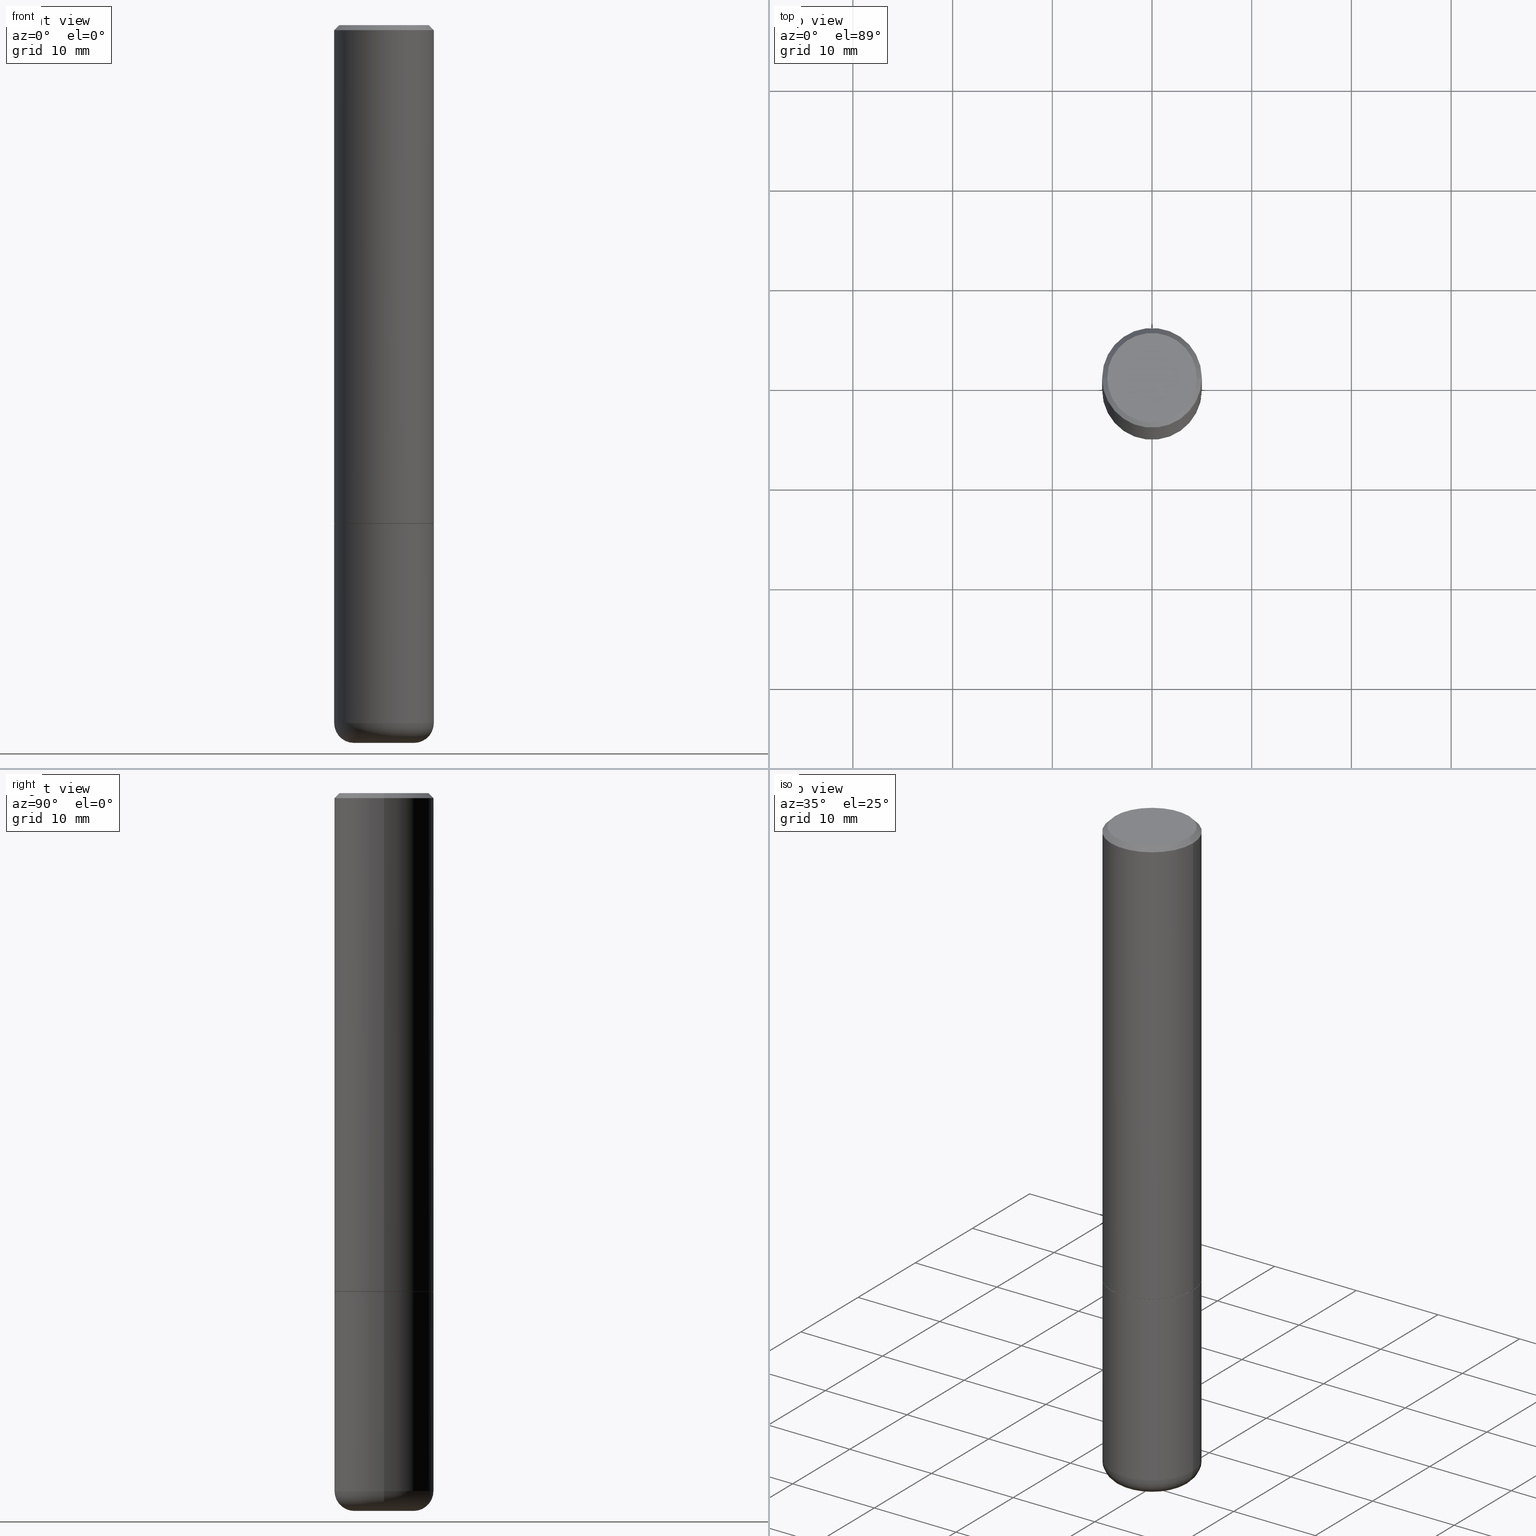
[diagram: canonical four-view strip — front | top / right | iso, engineering-drawing reading convention]
A machine part, canonical four-view strip (front | top / right | iso — engineering-drawing reading convention). The complete STEP part file that produces these views, byte-faithful:
ISO-10303-21;
HEADER;
FILE_DESCRIPTION (( 'STEP AP203' ),
    '1' );
FILE_NAME ('48009.STEP',
    '2024-03-06T19:44:53',
    ( '' ),
    ( '' ),
    'SwSTEP 2.0',
    'SolidWorks 2023',
    '' );
FILE_SCHEMA (( 'CONFIG_CONTROL_DESIGN' ));
ENDSEC;

DATA;
#1 = DIRECTION ( 'NONE',  ( 1.000000000000000000, -6.982962677686266711E-15, 4.876176775795935793E-29 ) ) ;
#2 = DIRECTION ( 'NONE',  ( -2.445468806185136597E-29, 3.491481338843145583E-15, 1.000000000000000000 ) ) ;
#3 = CONICAL_SURFACE ( 'NONE', #297, 0.1958499999999999963, 0.7853981633973801113 ) ;
#4 = VERTEX_POINT ( 'NONE', #31 ) ;
#5 = CARTESIAN_POINT ( 'NONE',  ( 0.1968500000000000250, -1.374596203102541608E-15, 9.598753983154300858E-30 ) ) ;
#6 = PLANE ( 'NONE',  #407 ) ;
#7 = CARTESIAN_POINT ( 'NONE',  ( -0.1958499999999999963, -5.481383067526576505E-15, -1.968500000000000361 ) ) ;
#8 = EDGE_CURVE ( 'NONE', #324, #47, #185, .T. ) ;
#9 = DESIGN_CONTEXT ( 'detailed design', #30, 'design' ) ;
#10 = DIRECTION ( 'NONE',  ( 1.000000000000000000, -6.982962677686265922E-15, 0.000000000000000000 ) ) ;
#11 = FACE_OUTER_BOUND ( 'NONE', #249, .T. ) ;
#12 = CC_DESIGN_DATE_AND_TIME_ASSIGNMENT ( #124, #318, ( #219 ) ) ;
#13 = AXIS2_PLACEMENT_3D ( 'NONE', #237, #111, #363 ) ;
#14 = EDGE_CURVE ( 'NONE', #59, #4, #288, .T. ) ;
#15 = DIRECTION ( 'NONE',  ( -2.445468806185136597E-29, 3.491481338843145583E-15, 1.000000000000000000 ) ) ;
#16 = ORGANIZATION ( 'UNSPECIFIED', 'UNSPECIFIED', '' ) ;
#17 = ORIENTED_EDGE ( 'NONE', *, *, #198, .T. ) ;
#18 =( NAMED_UNIT ( * ) SI_UNIT ( $, .STERADIAN. ) SOLID_ANGLE_UNIT ( ) );
#19 = ADVANCED_FACE ( 'NONE', ( #301 ), #258, .T. ) ;
#20 = MECHANICAL_CONTEXT ( 'NONE', #295, 'mechanical' ) ;
#21 = ORIENTED_EDGE ( 'NONE', *, *, #242, .T. ) ;
#22 = AXIS2_PLACEMENT_3D ( 'NONE', #196, #333, #385 ) ;
#23 = VERTEX_POINT ( 'NONE', #319 ) ;
#24 = APPLICATION_PROTOCOL_DEFINITION ( 'international standard', 'config_control_design', 1994, #30 ) ;
#25 = ORIENTED_EDGE ( 'NONE', *, *, #128, .T. ) ;
#26 = ADVANCED_FACE ( 'NONE', ( #221 ), #6, .T. ) ;
#27 = ORIENTED_EDGE ( 'NONE', *, *, #112, .F. ) ;
#28 = PERSON ( 'UNSPECIFIED', 'UNSPECIFIED', 'UNSPECIFIED', ('UNSPECIFIED'), ('UNSPECIFIED'), ('UNSPECIFIED') ) ;
#29 = AXIS2_PLACEMENT_3D ( 'NONE', #202, #334, #271 ) ;
#30 = APPLICATION_CONTEXT ( 'configuration controlled 3d designs of mechanical parts and assemblies' ) ;
#31 = CARTESIAN_POINT ( 'NONE',  ( 0.1968500000000000527, -1.420318657638189516E-15, -0.02000000000000004205 ) ) ;
#32 = CARTESIAN_POINT ( 'NONE',  ( -0.1968500000000001082, -8.223470046374067391E-15, -2.755900000000000016 ) ) ;
#33 = ORIENTED_EDGE ( 'NONE', *, *, #165, .T. ) ;
#34 = DIRECTION ( 'NONE',  ( -1.000000000000000000, 6.982962677686265922E-15, -4.876176775795935793E-29 ) ) ;
#35 = CARTESIAN_POINT ( 'NONE',  ( 4.813905344975442395E-29, -6.872981015512733285E-15, -1.968500000000000361 ) ) ;
#36 = APPROVAL_STATUS ( 'not_yet_approved' ) ;
#37 = DIRECTION ( 'NONE',  ( -2.445468806185136597E-29, 3.491481338843145583E-15, 1.000000000000000000 ) ) ;
#38 = CIRCLE ( 'NONE', #359, 0.07870000000000024198 ) ;
#39 = VECTOR ( 'NONE', #241, 39.37007874015748143 ) ;
#40 = DIRECTION ( 'NONE',  ( 2.445468806185136597E-29, -3.491481338843145583E-15, -1.000000000000000000 ) ) ;
#41 = FACE_OUTER_BOUND ( 'NONE', #341, .T. ) ;
#42 = ADVANCED_FACE ( 'NONE', ( #218 ), #63, .T. ) ;
#43 = CC_DESIGN_PERSON_AND_ORGANIZATION_ASSIGNMENT ( #403, #57, ( #219 ) ) ;
#44 = CARTESIAN_POINT ( 'NONE',  ( 6.739467482965618232E-29, -9.622173421717824390E-15, -2.755900000000000016 ) ) ;
#45 = AXIS2_PLACEMENT_3D ( 'NONE', #268, #234, #396 ) ;
#46 = FACE_OUTER_BOUND ( 'NONE', #172, .T. ) ;
#47 = VERTEX_POINT ( 'NONE', #416 ) ;
#48 = AXIS2_PLACEMENT_3D ( 'NONE', #304, #326, #328 ) ;
#49 = PERSON_AND_ORGANIZATION_ROLE ( 'design_supplier' ) ;
#50 = EDGE_CURVE ( 'NONE', #118, #177, #38, .T. ) ;
#51 = ORIENTED_EDGE ( 'NONE', *, *, #14, .T. ) ;
#52 = APPLICATION_PROTOCOL_DEFINITION ( 'international standard', 'config_control_design', 1994, #295 ) ;
#53 = ORIENTED_EDGE ( 'NONE', *, *, #14, .F. ) ;
#54 = PERSON_AND_ORGANIZATION_ROLE ( 'design_owner' ) ;
#55 = ORIENTED_EDGE ( 'NONE', *, *, #231, .T. ) ;
#56 = CIRCLE ( 'NONE', #109, 0.1958499999999999963 ) ;
#57 = PERSON_AND_ORGANIZATION_ROLE ( 'creator' ) ;
#58 = AXIS2_PLACEMENT_3D ( 'NONE', #332, #195, #262 ) ;
#59 = VERTEX_POINT ( 'NONE', #353 ) ;
#60 = APPROVAL ( #36, 'UNSPECIFIED' ) ;
#61 = DATE_AND_TIME ( #375, #153 ) ;
#62 = ORIENTED_EDGE ( 'NONE', *, *, #136, .F. ) ;
#63 = CYLINDRICAL_SURFACE ( 'NONE', #397, 0.1968500000000000250 ) ;
#64 = DIRECTION ( 'NONE',  ( 2.438088387897960049E-29, -3.491481338843145188E-15, -1.000000000000000000 ) ) ;
#65 = CC_DESIGN_APPROVAL ( #355, ( #171 ) ) ;
#66 = CARTESIAN_POINT ( 'NONE',  ( 0.000000000000000000, 0.000000000000000000, 0.000000000000000000 ) ) ;
#67 = DIRECTION ( 'NONE',  ( 1.000000000000000000, -6.982962677686265922E-15, 4.876176775795935793E-29 ) ) ;
#68 = FACE_OUTER_BOUND ( 'NONE', #345, .T. ) ;
#69 = FACE_OUTER_BOUND ( 'NONE', #97, .T. ) ;
#70 = CARTESIAN_POINT ( 'NONE',  ( -0.1181500000000000189, -8.640458403579145034E-15, -2.834600000000000453 ) ) ;
#71 = ADVANCED_FACE ( 'NONE', ( #68 ), #117, .T. ) ;
#72 = CARTESIAN_POINT ( 'NONE',  ( 4.811459876169256232E-29, -6.869489534173888700E-15, -1.967500000000000027 ) ) ;
#73 = AXIS2_PLACEMENT_3D ( 'NONE', #72, #37, #10 ) ;
#74 = DIRECTION ( 'NONE',  ( 1.000000000000000000, -6.982962677686265922E-15, 0.000000000000000000 ) ) ;
#75 = DIRECTION ( 'NONE',  ( -0.7071067811864992780, 7.493145998870180611E-15, 0.7071067811865957564 ) ) ;
#76 = CARTESIAN_POINT ( 'NONE',  ( 6.739467482965618232E-29, -9.622173421717824390E-15, -2.755900000000000016 ) ) ;
#77 = AXIS2_PLACEMENT_3D ( 'NONE', #299, #222, #418 ) ;
#78 = EDGE_LOOP ( 'NONE', ( #317, #55, #330, #212 ) ) ;
#79 = MANIFOLD_SOLID_BREP ( 'Body-Move/Copy2[2]', #200 ) ;
#80 = COORDINATED_UNIVERSAL_TIME_OFFSET ( 5, 0, .BEHIND. ) ;
#81 = ADVANCED_FACE ( 'NONE', ( #160 ), #279, .T. ) ;
#82 = ADVANCED_FACE ( 'NONE', ( #137 ), #3, .T. ) ;
#83 = VERTEX_POINT ( 'NONE', #70 ) ;
#84 = TOROIDAL_SURFACE ( 'NONE', #408, 0.1181500000000000050, 0.07870000000000022811 ) ;
#85 =( LENGTH_UNIT ( ) NAMED_UNIT ( * ) SI_UNIT ( $, .METRE. ) );
#86 = ORIENTED_EDGE ( 'NONE', *, *, #128, .F. ) ;
#87 = CARTESIAN_POINT ( 'NONE',  ( 0.1968500000000000527, -1.420318657638189516E-15, -0.02000000000000004205 ) ) ;
#88 = ORIENTED_EDGE ( 'NONE', *, *, #412, .T. ) ;
#89 = DATE_AND_TIME ( #377, #413 ) ;
#90 = AXIS2_PLACEMENT_3D ( 'NONE', #226, #127, #193 ) ;
#91 = COORDINATED_UNIVERSAL_TIME_OFFSET ( 5, 0, .BEHIND. ) ;
#92 = VECTOR ( 'NONE', #132, 39.37007874015748143 ) ;
#93 = DIRECTION ( 'NONE',  ( 1.000000000000000000, -6.982962677686268288E-15, 0.000000000000000000 ) ) ;
#94 = DIRECTION ( 'NONE',  ( -2.445468806185136877E-29, 3.491481338843145188E-15, 1.000000000000000000 ) ) ;
#95 = DIRECTION ( 'NONE',  ( 1.000000000000000000, -6.982962677686269077E-15, 4.883557194083114022E-29 ) ) ;
#96 = EDGE_CURVE ( 'NONE', #247, #414, #56, .T. ) ;
#97 = EDGE_LOOP ( 'NONE', ( #283, #406 ) ) ;
#98 = DIRECTION ( 'NONE',  ( -2.445468806185136877E-29, 3.491481338843145188E-15, 1.000000000000000000 ) ) ;
#99 = CARTESIAN_POINT ( 'NONE',  ( 0.1181500000000000050, -1.044721046208645774E-14, -2.755900000000000016 ) ) ;
#100 = APPROVAL_ROLE ( '' ) ;
#101 = CARTESIAN_POINT ( 'NONE',  ( 0.1968500000000001082, -1.099676962482036600E-14, -2.755900000000000016 ) ) ;
#102 = ORIENTED_EDGE ( 'NONE', *, *, #275, .F. ) ;
#103 = FACE_OUTER_BOUND ( 'NONE', #240, .T. ) ;
#104 = EDGE_CURVE ( 'NONE', #281, #337, #167, .T. ) ;
#105 = CARTESIAN_POINT ( 'NONE',  ( 4.811459876169256232E-29, -6.869489534173888700E-15, -1.967500000000000027 ) ) ;
#106 = FACE_OUTER_BOUND ( 'NONE', #384, .T. ) ;
#107 = CARTESIAN_POINT ( 'NONE',  ( 6.739467482965618232E-29, -9.622173421717824390E-15, -2.755900000000000016 ) ) ;
#108 = CONICAL_SURFACE ( 'NONE', #29, 0.1968500000000000527, 0.7853981633974469467 ) ;
#109 = AXIS2_PLACEMENT_3D ( 'NONE', #163, #381, #93 ) ;
#110 = AXIS2_PLACEMENT_3D ( 'NONE', #76, #170, #169 ) ;
#111 = DIRECTION ( 'NONE',  ( -2.438088387897960049E-29, 3.491481338843145188E-15, 1.000000000000000000 ) ) ;
#112 = EDGE_CURVE ( 'NONE', #23, #59, #201, .T. ) ;
#113 = LINE ( 'NONE', #87, #39 ) ;
#114 = CC_DESIGN_PERSON_AND_ORGANIZATION_ASSIGNMENT ( #213, #307, ( #171 ) ) ;
#115 = ORIENTED_EDGE ( 'NONE', *, *, #312, .T. ) ;
#116 = DIRECTION ( 'NONE',  ( 1.000000000000000000, 0.000000000000000000, 0.000000000000000000 ) ) ;
#117 = CONICAL_SURFACE ( 'NONE', #214, 0.1958499999999999963, 0.7853981633973801113 ) ;
#118 = VERTEX_POINT ( 'NONE', #189 ) ;
#119 = AXIS2_PLACEMENT_3D ( 'NONE', #265, #394, #230 ) ;
#120 = ORIENTED_EDGE ( 'NONE', *, *, #104, .F. ) ;
#121 = APPROVAL_STATUS ( 'not_yet_approved' ) ;
#122 = DIRECTION ( 'NONE',  ( 0.7071067811864992780, -2.468850131081751401E-15, 0.7071067811865957564 ) ) ;
#123 = VERTEX_POINT ( 'NONE', #32 ) ;
#124 = DATE_AND_TIME ( #179, #126 ) ;
#125 = ORIENTED_EDGE ( 'NONE', *, *, #336, .F. ) ;
#126 = LOCAL_TIME ( 14, 44, 53.00000000000000000, #80 ) ;
#127 = DIRECTION ( 'NONE',  ( -2.445468806185136597E-29, 3.491481338843145583E-15, 1.000000000000000000 ) ) ;
#128 = EDGE_CURVE ( 'NONE', #47, #324, #380, .T. ) ;
#129 = DIRECTION ( 'NONE',  ( -6.982962677686266711E-15, -1.000000000000000000, 3.491481338843145583E-15 ) ) ;
#130 = CARTESIAN_POINT ( 'NONE',  ( -0.1968500000000000527, 1.304766576325678902E-15, -0.02000000000000004205 ) ) ;
#131 = ORIENTED_EDGE ( 'NONE', *, *, #235, .F. ) ;
#132 = DIRECTION ( 'NONE',  ( -2.445468806185136877E-29, 3.491481338843145188E-15, 1.000000000000000000 ) ) ;
#133 = AXIS2_PLACEMENT_3D ( 'NONE', #362, #2, #67 ) ;
#134 = CARTESIAN_POINT ( 'NONE',  ( 4.890937612370283668E-31, -6.982962677686305168E-17, -0.02000000000000004205 ) ) ;
#135 = LINE ( 'NONE', #5, #92 ) ;
#136 = EDGE_CURVE ( 'NONE', #177, #324, #135, .T. ) ;
#137 = FACE_OUTER_BOUND ( 'NONE', #78, .T. ) ;
#138 = CARTESIAN_POINT ( 'NONE',  ( 4.890937612370283668E-31, -6.982962677686305168E-17, -0.02000000000000004205 ) ) ;
#139 = CARTESIAN_POINT ( 'NONE',  ( 6.931925878012389760E-29, -9.896953003084782463E-15, -2.834600000000000453 ) ) ;
#140 = TOROIDAL_SURFACE ( 'NONE', #162, 0.1181500000000000050, 0.07870000000000022811 ) ;
#141 = DIRECTION ( 'NONE',  ( 1.000000000000000000, -6.982962677686269077E-15, 4.883557194083114022E-29 ) ) ;
#142 = AXIS2_PLACEMENT_3D ( 'NONE', #134, #40, #263 ) ;
#143 = ADVANCED_FACE ( 'NONE', ( #323 ), #156, .T. ) ;
#144 = CIRCLE ( 'NONE', #280, 0.1958499999999999963 ) ;
#145 = APPROVAL_STATUS ( 'not_yet_approved' ) ;
#146 = CC_DESIGN_PERSON_AND_ORGANIZATION_ASSIGNMENT ( #339, #49, ( #171 ) ) ;
#147 = ORIENTED_EDGE ( 'NONE', *, *, #165, .F. ) ;
#148 = ORIENTED_EDGE ( 'NONE', *, *, #312, .F. ) ;
#149 = PERSON_AND_ORGANIZATION ( #28, #16 ) ;
#150 = ORIENTED_EDGE ( 'NONE', *, *, #399, .T. ) ;
#151 = ADVANCED_FACE ( 'NONE', ( #69 ), #192, .F. ) ;
#152 = ORIENTED_EDGE ( 'NONE', *, *, #382, .F. ) ;
#153 = LOCAL_TIME ( 14, 44, 53.00000000000000000, #369 ) ;
#154 = APPROVAL ( #145, 'UNSPECIFIED' ) ;
#155 = ORIENTED_EDGE ( 'NONE', *, *, #50, .T. ) ;
#156 = CYLINDRICAL_SURFACE ( 'NONE', #224, 0.1968500000000001082 ) ;
#157 = ADVANCED_BREP_SHAPE_REPRESENTATION ( '48009', ( #217, #79, #269 ), #272 ) ;
#158 = DIRECTION ( 'NONE',  ( 1.000000000000000000, -6.982962677686268288E-15, 0.000000000000000000 ) ) ;
#159 = CARTESIAN_POINT ( 'NONE',  ( 0.1958499999999999963, -8.240594255937588879E-15, -1.968500000000000361 ) ) ;
#160 = FACE_OUTER_BOUND ( 'NONE', #182, .T. ) ;
#161 = LINE ( 'NONE', #7, #366 ) ;
#162 = AXIS2_PLACEMENT_3D ( 'NONE', #107, #15, #141 ) ;
#163 = CARTESIAN_POINT ( 'NONE',  ( 4.813905344975442395E-29, -6.872981015512733285E-15, -1.968500000000000361 ) ) ;
#164 = DIRECTION ( 'NONE',  ( 1.000000000000000000, -6.982962677686267499E-15, 4.875932113059876327E-29 ) ) ;
#165 = EDGE_CURVE ( 'NONE', #123, #47, #187, .T. ) ;
#166 = AXIS2_PLACEMENT_3D ( 'NONE', #66, #290, #1 ) ;
#167 = CIRCLE ( 'NONE', #119, 0.1768500000000000627 ) ;
#168 = LOCAL_TIME ( 14, 44, 53.00000000000000000, #254 ) ;
#169 = DIRECTION ( 'NONE',  ( 1.000000000000000000, -6.982962677686267499E-15, 0.000000000000000000 ) ) ;
#170 = DIRECTION ( 'NONE',  ( -2.445468806185136597E-29, 3.491481338843145583E-15, 1.000000000000000000 ) ) ;
#171 = PRODUCT_DEFINITION_FORMATION_WITH_SPECIFIED_SOURCE ( 'ANY', '', #417, .NOT_KNOWN. ) ;
#172 = EDGE_LOOP ( 'NONE', ( #313, #152 ) ) ;
#173 = SECURITY_CLASSIFICATION_LEVEL ( 'unclassified' ) ;
#174 = ORIENTED_EDGE ( 'NONE', *, *, #203, .T. ) ;
#175 = CARTESIAN_POINT ( 'NONE',  ( -0.1958499999999999963, -5.476084613178352526E-15, -1.968500000000000361 ) ) ;
#176 = ORIENTED_EDGE ( 'NONE', *, *, #300, .F. ) ;
#177 = VERTEX_POINT ( 'NONE', #101 ) ;
#178 = VECTOR ( 'NONE', #122, 39.37007874015748143 ) ;
#179 = CALENDAR_DATE ( 2024, 6, 3 ) ;
#180 = EDGE_LOOP ( 'NONE', ( #277, #33, #245, #62 ) ) ;
#181 = EDGE_CURVE ( 'NONE', #337, #281, #331, .T. ) ;
#182 = EDGE_LOOP ( 'NONE', ( #120, #88, #411, #386 ) ) ;
#183 = CC_DESIGN_PERSON_AND_ORGANIZATION_ASSIGNMENT ( #278, #54, ( #417 ) ) ;
#184 = CARTESIAN_POINT ( 'NONE',  ( 0.000000000000000000, 0.000000000000000000, 0.000000000000000000 ) ) ;
#185 = CIRCLE ( 'NONE', #90, 0.1968500000000000250 ) ;
#186 = APPROVAL_PERSON_ORGANIZATION ( #379, #355, #248 ) ;
#187 = LINE ( 'NONE', #302, #298 ) ;
#188 = DIRECTION ( 'NONE',  ( 1.000000000000000000, -6.982962677686273810E-15, 0.000000000000000000 ) ) ;
#189 = CARTESIAN_POINT ( 'NONE',  ( 0.1181500000000000189, -1.072199004345341424E-14, -2.834600000000000453 ) ) ;
#190 = DIRECTION ( 'NONE',  ( 2.438088387897960049E-29, -3.491481338843145188E-15, -1.000000000000000000 ) ) ;
#191 = PERSON_AND_ORGANIZATION_ROLE ( 'classification_officer' ) ;
#192 = PLANE ( 'NONE',  #398 ) ;
#193 = DIRECTION ( 'NONE',  ( 1.000000000000000000, -6.982962677686267499E-15, 0.000000000000000000 ) ) ;
#194 = CIRCLE ( 'NONE', #22, 0.07870000000000024198 ) ;
#195 = DIRECTION ( 'NONE',  ( -2.445468806185136597E-29, 3.491481338843145583E-15, 1.000000000000000000 ) ) ;
#196 = CARTESIAN_POINT ( 'NONE',  ( -0.1181500000000000050, -8.782667179417266182E-15, -2.755900000000000016 ) ) ;
#197 = FACE_OUTER_BOUND ( 'NONE', #251, .T. ) ;
#198 = EDGE_CURVE ( 'NONE', #208, #4, #389, .T. ) ;
#199 = CARTESIAN_POINT ( 'NONE',  ( 0.1968500000000000250, -8.247577218615273316E-15, -1.968500000000000139 ) ) ;
#200 = CLOSED_SHELL ( 'NONE', ( #82, #143, #81, #364, #19, #71, #320, #151 ) ) ;
#201 = CIRCLE ( 'NONE', #238, 0.1968500000000002192 ) ;
#202 = CARTESIAN_POINT ( 'NONE',  ( 4.890937612370283668E-31, -6.982962677686305168E-17, -0.02000000000000004205 ) ) ;
#203 = EDGE_CURVE ( 'NONE', #59, #23, #350, .T. ) ;
#204 = ORIENTED_EDGE ( 'NONE', *, *, #383, .T. ) ;
#205 = LINE ( 'NONE', #276, #215 ) ;
#206 = CIRCLE ( 'NONE', #110, 0.1968500000000000250 ) ;
#207 = APPROVAL_PERSON_ORGANIZATION ( #220, #60, #100 ) ;
#208 = VERTEX_POINT ( 'NONE', #130 ) ;
#209 = LENGTH_MEASURE_WITH_UNIT ( LENGTH_MEASURE( 0.02539999999999999897 ), #85 );
#210 = ORIENTED_EDGE ( 'NONE', *, *, #242, .F. ) ;
#211 = DIRECTION ( 'NONE',  ( -0.7071067811865465735, 2.468850131082246805E-15, -0.7071067811865484609 ) ) ;
#212 = ORIENTED_EDGE ( 'NONE', *, *, #309, .F. ) ;
#213 = PERSON_AND_ORGANIZATION ( #28, #16 ) ;
#214 = AXIS2_PLACEMENT_3D ( 'NONE', #35, #293, #158 ) ;
#215 = VECTOR ( 'NONE', #211, 39.37007874015748143 ) ;
#216 = ADVANCED_FACE ( 'NONE', ( #103 ), #229, .F. ) ;
#217 = MANIFOLD_SOLID_BREP ( 'Body-Move/Copy2[1]', #365 ) ;
#218 = FACE_OUTER_BOUND ( 'NONE', #180, .T. ) ;
#219 = PRODUCT_DEFINITION ( 'UNKNOWN', '', #171, #9 ) ;
#220 = PERSON_AND_ORGANIZATION ( #28, #16 ) ;
#221 = FACE_OUTER_BOUND ( 'NONE', #344, .T. ) ;
#222 = DIRECTION ( 'NONE',  ( -2.445468806185136597E-29, 3.491481338843145583E-15, 1.000000000000000000 ) ) ;
#223 = CARTESIAN_POINT ( 'NONE',  ( 0.1968500000000001082, -1.374596203102542397E-15, 9.598753983154305062E-30 ) ) ;
#224 = AXIS2_PLACEMENT_3D ( 'NONE', #354, #292, #395 ) ;
#225 = DIRECTION ( 'NONE',  ( -2.445468806185136597E-29, 3.491481338843145583E-15, 1.000000000000000000 ) ) ;
#226 = CARTESIAN_POINT ( 'NONE',  ( 4.813905344975441835E-29, -6.872981015512731707E-15, -1.968500000000000139 ) ) ;
#227 = DIRECTION ( 'NONE',  ( -2.445468806185136877E-29, 3.491481338843145188E-15, 1.000000000000000000 ) ) ;
#228 = DIRECTION ( 'NONE',  ( -2.445468806185136597E-29, 3.491481338843145583E-15, 1.000000000000000000 ) ) ;
#229 = PLANE ( 'NONE',  #232 ) ;
#230 = DIRECTION ( 'NONE',  ( 1.000000000000000000, -6.982962677686267499E-15, 4.875932113059876327E-29 ) ) ;
#231 = EDGE_CURVE ( 'NONE', #414, #23, #161, .T. ) ;
#232 = AXIS2_PLACEMENT_3D ( 'NONE', #257, #255, #34 ) ;
#233 = CYLINDRICAL_SURFACE ( 'NONE', #133, 0.1968500000000000250 ) ;
#234 = DIRECTION ( 'NONE',  ( -2.445468806185136597E-29, 3.491481338843145583E-15, 1.000000000000000000 ) ) ;
#235 = EDGE_CURVE ( 'NONE', #177, #123, #287, .T. ) ;
#236 = DIRECTION ( 'NONE',  ( -2.445468806185136597E-29, 3.491481338843145583E-15, 1.000000000000000000 ) ) ;
#237 = CARTESIAN_POINT ( 'NONE',  ( 4.813905344975441835E-29, -6.872981015512731707E-15, -1.968500000000000139 ) ) ;
#238 = AXIS2_PLACEMENT_3D ( 'NONE', #105, #360, #74 ) ;
#239 = DIRECTION ( 'NONE',  ( 1.000000000000000000, -6.982962677686268288E-15, 0.000000000000000000 ) ) ;
#240 = EDGE_LOOP ( 'NONE', ( #296, #25 ) ) ;
#241 = DIRECTION ( 'NONE',  ( 0.7071067811865465735, -7.319954787623252890E-15, -0.7071067811865484609 ) ) ;
#242 = EDGE_CURVE ( 'NONE', #23, #208, #388, .T. ) ;
#243 = VECTOR ( 'NONE', #98, 39.37007874015748143 ) ;
#244 = CC_DESIGN_SECURITY_CLASSIFICATION ( #306, ( #171 ) ) ;
#245 = ORIENTED_EDGE ( 'NONE', *, *, #8, .F. ) ;
#246 = APPROVAL_ROLE ( '' ) ;
#247 = VERTEX_POINT ( 'NONE', #159 ) ;
#248 = APPROVAL_ROLE ( '' ) ;
#249 = EDGE_LOOP ( 'NONE', ( #176, #115, #155, #125 ) ) ;
#250 = DIRECTION ( 'NONE',  ( 0.000000000000000000, 0.000000000000000000, 1.000000000000000000 ) ) ;
#251 = EDGE_LOOP ( 'NONE', ( #315, #376, #150, #17 ) ) ;
#252 = UNCERTAINTY_MEASURE_WITH_UNIT (LENGTH_MEASURE( 1.000000000000000082E-05 ), #342, 'distance_accuracy_value', 'NONE');
#253 = EDGE_LOOP ( 'NONE', ( #174, #21, #102, #53 ) ) ;
#254 = COORDINATED_UNIVERSAL_TIME_OFFSET ( 5, 0, .BEHIND. ) ;
#255 = DIRECTION ( 'NONE',  ( 2.438088387897960049E-29, -3.491481338843145188E-15, -1.000000000000000000 ) ) ;
#256 = ORIENTED_EDGE ( 'NONE', *, *, #383, .F. ) ;
#257 = CARTESIAN_POINT ( 'NONE',  ( 4.813905344975441835E-29, -6.872981015512731707E-15, -1.968500000000000139 ) ) ;
#258 = CYLINDRICAL_SURFACE ( 'NONE', #166, 0.1968500000000001082 ) ;
#259 = AXIS2_PLACEMENT_3D ( 'NONE', #138, #352, #294 ) ;
#260 = CALENDAR_DATE ( 2024, 6, 3 ) ;
#261 = DIMENSIONAL_EXPONENTS ( 1.000000000000000000, 0.000000000000000000, 0.000000000000000000, 0.000000000000000000, 0.000000000000000000, 0.000000000000000000, 0.000000000000000000 ) ;
#262 = DIRECTION ( 'NONE',  ( 1.000000000000000000, -6.982962677686267499E-15, 0.000000000000000000 ) ) ;
#263 = DIRECTION ( 'NONE',  ( -1.000000000000000000, 6.982962677686266711E-15, 0.000000000000000000 ) ) ;
#264 = DIRECTION ( 'NONE',  ( -1.000000000000000000, 6.982962677686265922E-15, -4.876176775795935793E-29 ) ) ;
#265 = CARTESIAN_POINT ( 'NONE',  ( -1.043851414335219820E-46, 1.490343170380447200E-32, 4.268512490100411279E-18 ) ) ;
#266 = ADVANCED_FACE ( 'NONE', ( #41 ), #84, .T. ) ;
#267 = CARTESIAN_POINT ( 'NONE',  ( 0.1768500000000000627, -1.316798864272042535E-15, 4.268512490109333727E-18 ) ) ;
#268 = CARTESIAN_POINT ( 'NONE',  ( 6.931925878012389760E-29, -9.896953003084782463E-15, -2.834600000000000453 ) ) ;
#269 = AXIS2_PLACEMENT_3D ( 'NONE', #405, #250, #116 ) ;
#270 = PLANE ( 'NONE',  #13 ) ;
#271 = DIRECTION ( 'NONE',  ( -1.000000000000000000, 6.982962677686266711E-15, 0.000000000000000000 ) ) ;
#272 =( GEOMETRIC_REPRESENTATION_CONTEXT ( 3 ) GLOBAL_UNCERTAINTY_ASSIGNED_CONTEXT ( ( #252 ) ) GLOBAL_UNIT_ASSIGNED_CONTEXT ( ( #342, #314, #18 ) ) REPRESENTATION_CONTEXT ( 'NONE', 'WORKASPACE' ) );
#273 = APPROVAL_DATE_TIME ( #89, #355 ) ;
#274 = ORIENTED_EDGE ( 'NONE', *, *, #336, .T. ) ;
#275 = EDGE_CURVE ( 'NONE', #4, #208, #335, .T. ) ;
#276 = CARTESIAN_POINT ( 'NONE',  ( -0.1968500000000000527, 1.304766576325678902E-15, -0.02000000000000004205 ) ) ;
#277 = ORIENTED_EDGE ( 'NONE', *, *, #235, .T. ) ;
#278 = PERSON_AND_ORGANIZATION ( #28, #16 ) ;
#279 = CONICAL_SURFACE ( 'NONE', #142, 0.1968500000000000527, 0.7853981633974469467 ) ;
#280 = AXIS2_PLACEMENT_3D ( 'NONE', #401, #305, #239 ) ;
#281 = VERTEX_POINT ( 'NONE', #267 ) ;
#282 = APPROVAL_DATE_TIME ( #61, #154 ) ;
#283 = ORIENTED_EDGE ( 'NONE', *, *, #181, .T. ) ;
#284 = ADVANCED_FACE ( 'NONE', ( #106 ), #233, .T. ) ;
#285 = ORIENTED_EDGE ( 'NONE', *, *, #112, .T. ) ;
#286 = DATE_TIME_ROLE ( 'classification_date' ) ;
#287 = CIRCLE ( 'NONE', #58, 0.1968500000000000250 ) ;
#288 = LINE ( 'NONE', #223, #329 ) ;
#289 = DATE_AND_TIME ( #260, #168 ) ;
#290 = DIRECTION ( 'NONE',  ( -2.445468806185136597E-29, 3.491481338843145583E-15, 1.000000000000000000 ) ) ;
#291 = PRODUCT_DEFINITION_SHAPE ( 'NONE', 'NONE',  #219 ) ;
#292 = DIRECTION ( 'NONE',  ( -2.445468806185136597E-29, 3.491481338843145583E-15, 1.000000000000000000 ) ) ;
#293 = DIRECTION ( 'NONE',  ( -2.445468806185136597E-29, 3.491481338843145583E-15, 1.000000000000000000 ) ) ;
#294 = DIRECTION ( 'NONE',  ( 1.000000000000000000, -6.982962677686266711E-15, 0.000000000000000000 ) ) ;
#295 = APPLICATION_CONTEXT ( 'configuration controlled 3d designs of mechanical parts and assemblies' ) ;
#296 = ORIENTED_EDGE ( 'NONE', *, *, #8, .T. ) ;
#297 = AXIS2_PLACEMENT_3D ( 'NONE', #392, #228, #356 ) ;
#298 = VECTOR ( 'NONE', #227, 39.37007874015748143 ) ;
#299 = CARTESIAN_POINT ( 'NONE',  ( 4.813905344975441835E-29, -6.872981015512731707E-15, -1.968500000000000139 ) ) ;
#300 = EDGE_CURVE ( 'NONE', #83, #123, #194, .T. ) ;
#301 = FACE_OUTER_BOUND ( 'NONE', #370, .T. ) ;
#302 = CARTESIAN_POINT ( 'NONE',  ( -0.1968500000000000250, 1.398703375343757393E-15, -9.682923725166783677E-30 ) ) ;
#303 = CC_DESIGN_DATE_AND_TIME_ASSIGNMENT ( #348, #286, ( #306 ) ) ;
#304 = CARTESIAN_POINT ( 'NONE',  ( 4.890937612370283668E-31, -6.982962677686305168E-17, -0.02000000000000004205 ) ) ;
#305 = DIRECTION ( 'NONE',  ( -2.445468806185136597E-29, 3.491481338843145583E-15, 1.000000000000000000 ) ) ;
#306 = SECURITY_CLASSIFICATION ( '', '', #173 ) ;
#307 = PERSON_AND_ORGANIZATION_ROLE ( 'creator' ) ;
#308 = CC_DESIGN_APPROVAL ( #154, ( #219 ) ) ;
#309 = EDGE_CURVE ( 'NONE', #247, #59, #338, .T. ) ;
#310 = ORIENTED_EDGE ( 'NONE', *, *, #300, .T. ) ;
#311 = PERSON_AND_ORGANIZATION ( #28, #16 ) ;
#312 = EDGE_CURVE ( 'NONE', #83, #118, #321, .T. ) ;
#313 = ORIENTED_EDGE ( 'NONE', *, *, #96, .F. ) ;
#314 =( NAMED_UNIT ( * ) PLANE_ANGLE_UNIT ( ) SI_UNIT ( $, .RADIAN. ) );
#315 = ORIENTED_EDGE ( 'NONE', *, *, #412, .F. ) ;
#316 = AXIS2_PLACEMENT_3D ( 'NONE', #393, #358, #164 ) ;
#317 = ORIENTED_EDGE ( 'NONE', *, *, #96, .T. ) ;
#318 = DATE_TIME_ROLE ( 'creation_date' ) ;
#319 = CARTESIAN_POINT ( 'NONE',  ( -0.1968500000000002192, -2.070956205131615845E-15, -1.967500000000000027 ) ) ;
#320 = ADVANCED_FACE ( 'NONE', ( #46 ), #270, .F. ) ;
#321 = CIRCLE ( 'NONE', #45, 0.1181500000000000189 ) ;
#322 = DIRECTION ( 'NONE',  ( 1.000000000000000000, -6.982962677686265922E-15, 4.876176775795935793E-29 ) ) ;
#323 = FACE_OUTER_BOUND ( 'NONE', #253, .T. ) ;
#324 = VERTEX_POINT ( 'NONE', #199 ) ;
#325 = APPROVAL_DATE_TIME ( #289, #60 ) ;
#326 = DIRECTION ( 'NONE',  ( -2.445468806185136597E-29, 3.491481338843145583E-15, 1.000000000000000000 ) ) ;
#327 = DIRECTION ( 'NONE',  ( -2.445468806185136597E-29, 3.491481338843145583E-15, 1.000000000000000000 ) ) ;
#328 = DIRECTION ( 'NONE',  ( 1.000000000000000000, -6.982962677686266711E-15, 0.000000000000000000 ) ) ;
#329 = VECTOR ( 'NONE', #94, 39.37007874015748143 ) ;
#330 = ORIENTED_EDGE ( 'NONE', *, *, #203, .F. ) ;
#331 = CIRCLE ( 'NONE', #316, 0.1768500000000000627 ) ;
#332 = CARTESIAN_POINT ( 'NONE',  ( 6.739467482965618232E-29, -9.622173421717824390E-15, -2.755900000000000016 ) ) ;
#333 = DIRECTION ( 'NONE',  ( 7.105427357601001859E-15, 1.000000000000000000, -3.491481338843145583E-15 ) ) ;
#334 = DIRECTION ( 'NONE',  ( 2.445468806185136597E-29, -3.491481338843145583E-15, -1.000000000000000000 ) ) ;
#335 = CIRCLE ( 'NONE', #259, 0.1968500000000000527 ) ;
#336 = EDGE_CURVE ( 'NONE', #123, #177, #206, .T. ) ;
#337 = VERTEX_POINT ( 'NONE', #367 ) ;
#338 = LINE ( 'NONE', #410, #178 ) ;
#339 = PERSON_AND_ORGANIZATION ( #28, #16 ) ;
#340 = CC_DESIGN_APPROVAL ( #60, ( #306 ) ) ;
#341 = EDGE_LOOP ( 'NONE', ( #204, #310, #131, #374 ) ) ;
#342 =( CONVERSION_BASED_UNIT ( 'INCH', #209 ) LENGTH_UNIT ( ) NAMED_UNIT ( #261 ) );
#343 = ORIENTED_EDGE ( 'NONE', *, *, #198, .F. ) ;
#344 = EDGE_LOOP ( 'NONE', ( #256, #148 ) ) ;
#345 = EDGE_LOOP ( 'NONE', ( #404, #378, #409, #27 ) ) ;
#346 = ADVANCED_FACE ( 'NONE', ( #11 ), #140, .T. ) ;
#347 = DIRECTION ( 'NONE',  ( -1.000000000000000000, 6.982962677686265922E-15, -4.876176775795935793E-29 ) ) ;
#348 = DATE_AND_TIME ( #387, #373 ) ;
#349 = CARTESIAN_POINT ( 'NONE',  ( 1.234936949548816590E-15, 0.1768500000000000627, -6.153342185293602508E-16 ) ) ;
#350 = CIRCLE ( 'NONE', #73, 0.1968500000000002192 ) ;
#351 = ORIENTED_EDGE ( 'NONE', *, *, #136, .T. ) ;
#352 = DIRECTION ( 'NONE',  ( -2.445468806185136597E-29, 3.491481338843145583E-15, 1.000000000000000000 ) ) ;
#353 = CARTESIAN_POINT ( 'NONE',  ( 0.1968500000000002192, -8.244085737276431886E-15, -1.967500000000000027 ) ) ;
#354 = CARTESIAN_POINT ( 'NONE',  ( 0.000000000000000000, 0.000000000000000000, 0.000000000000000000 ) ) ;
#355 = APPROVAL ( #121, 'UNSPECIFIED' ) ;
#356 = DIRECTION ( 'NONE',  ( 1.000000000000000000, -6.982962677686268288E-15, 0.000000000000000000 ) ) ;
#357 = COORDINATED_UNIVERSAL_TIME_OFFSET ( 5, 0, .BEHIND. ) ;
#358 = DIRECTION ( 'NONE',  ( -2.445468806185136597E-29, 3.491481338843145583E-15, 1.000000000000000000 ) ) ;
#359 = AXIS2_PLACEMENT_3D ( 'NONE', #99, #129, #188 ) ;
#360 = DIRECTION ( 'NONE',  ( -2.445468806185136597E-29, 3.491481338843145583E-15, 1.000000000000000000 ) ) ;
#361 = APPROVAL_PERSON_ORGANIZATION ( #149, #154, #246 ) ;
#362 = CARTESIAN_POINT ( 'NONE',  ( 0.000000000000000000, 0.000000000000000000, 0.000000000000000000 ) ) ;
#363 = DIRECTION ( 'NONE',  ( 1.000000000000000000, -6.982962677686265922E-15, 4.876176775795935793E-29 ) ) ;
#364 = ADVANCED_FACE ( 'NONE', ( #197 ), #108, .T. ) ;
#365 = CLOSED_SHELL ( 'NONE', ( #42, #266, #216, #284, #346, #26 ) ) ;
#366 = VECTOR ( 'NONE', #75, 39.37007874015748143 ) ;
#367 = CARTESIAN_POINT ( 'NONE',  ( -0.1768500000000000627, 1.269851762937247844E-15, 4.268512490091652920E-18 ) ) ;
#368 = CC_DESIGN_PERSON_AND_ORGANIZATION_ASSIGNMENT ( #311, #191, ( #306 ) ) ;
#369 = COORDINATED_UNIVERSAL_TIME_OFFSET ( 5, 0, .BEHIND. ) ;
#370 = EDGE_LOOP ( 'NONE', ( #210, #285, #51, #343 ) ) ;
#371 = DIRECTION ( 'NONE',  ( 1.000000000000000000, -6.982962677686265922E-15, 0.000000000000000000 ) ) ;
#372 = CIRCLE ( 'NONE', #400, 0.1181500000000000189 ) ;
#373 = LOCAL_TIME ( 14, 44, 53.00000000000000000, #357 ) ;
#374 = ORIENTED_EDGE ( 'NONE', *, *, #50, .F. ) ;
#375 = CALENDAR_DATE ( 2024, 6, 3 ) ;
#376 = ORIENTED_EDGE ( 'NONE', *, *, #181, .F. ) ;
#377 = CALENDAR_DATE ( 2024, 6, 3 ) ;
#378 = ORIENTED_EDGE ( 'NONE', *, *, #382, .T. ) ;
#379 = PERSON_AND_ORGANIZATION ( #28, #16 ) ;
#380 = CIRCLE ( 'NONE', #77, 0.1968500000000000250 ) ;
#381 = DIRECTION ( 'NONE',  ( -2.445468806185136597E-29, 3.491481338843145583E-15, 1.000000000000000000 ) ) ;
#382 = EDGE_CURVE ( 'NONE', #414, #247, #144, .T. ) ;
#383 = EDGE_CURVE ( 'NONE', #118, #83, #372, .T. ) ;
#384 = EDGE_LOOP ( 'NONE', ( #147, #274, #351, #86 ) ) ;
#385 = DIRECTION ( 'NONE',  ( -1.000000000000000000, 7.105427357600995548E-15, 0.000000000000000000 ) ) ;
#386 = ORIENTED_EDGE ( 'NONE', *, *, #399, .F. ) ;
#387 = CALENDAR_DATE ( 2024, 6, 3 ) ;
#388 = LINE ( 'NONE', #391, #243 ) ;
#389 = CIRCLE ( 'NONE', #48, 0.1968500000000000527 ) ;
#390 = CARTESIAN_POINT ( 'NONE',  ( -2.221513378819288137E-29, -2.300519900027601707E-14, -2.834600000000000453 ) ) ;
#391 = CARTESIAN_POINT ( 'NONE',  ( -0.1968500000000001082, 1.398703375343757985E-15, -9.682923725166787881E-30 ) ) ;
#392 = CARTESIAN_POINT ( 'NONE',  ( 4.813905344975442395E-29, -6.872981015512733285E-15, -1.968500000000000361 ) ) ;
#393 = CARTESIAN_POINT ( 'NONE',  ( -1.043851414335219820E-46, 1.490343170380447200E-32, 4.268512490100411279E-18 ) ) ;
#394 = DIRECTION ( 'NONE',  ( -2.445468806185136597E-29, 3.491481338843145583E-15, 1.000000000000000000 ) ) ;
#395 = DIRECTION ( 'NONE',  ( 1.000000000000000000, -6.982962677686266711E-15, 4.876176775795935793E-29 ) ) ;
#396 = DIRECTION ( 'NONE',  ( 1.000000000000000000, -6.982962677686265922E-15, 0.000000000000000000 ) ) ;
#397 = AXIS2_PLACEMENT_3D ( 'NONE', #184, #327, #322 ) ;
#398 = AXIS2_PLACEMENT_3D ( 'NONE', #349, #64, #264 ) ;
#399 = EDGE_CURVE ( 'NONE', #337, #208, #205, .T. ) ;
#400 = AXIS2_PLACEMENT_3D ( 'NONE', #139, #236, #371 ) ;
#401 = CARTESIAN_POINT ( 'NONE',  ( 4.813905344975442395E-29, -6.872981015512733285E-15, -1.968500000000000361 ) ) ;
#402 = PRODUCT_RELATED_PRODUCT_CATEGORY ( 'detail', '', ( #417 ) ) ;
#403 = PERSON_AND_ORGANIZATION ( #28, #16 ) ;
#404 = ORIENTED_EDGE ( 'NONE', *, *, #231, .F. ) ;
#405 = CARTESIAN_POINT ( 'NONE',  ( 0.000000000000000000, 0.000000000000000000, 0.000000000000000000 ) ) ;
#406 = ORIENTED_EDGE ( 'NONE', *, *, #104, .T. ) ;
#407 = AXIS2_PLACEMENT_3D ( 'NONE', #390, #190, #347 ) ;
#408 = AXIS2_PLACEMENT_3D ( 'NONE', #44, #225, #95 ) ;
#409 = ORIENTED_EDGE ( 'NONE', *, *, #309, .T. ) ;
#410 = CARTESIAN_POINT ( 'NONE',  ( 0.1958499999999999963, -8.240594255937588879E-15, -1.968500000000000361 ) ) ;
#411 = ORIENTED_EDGE ( 'NONE', *, *, #275, .T. ) ;
#412 = EDGE_CURVE ( 'NONE', #281, #4, #113, .T. ) ;
#413 = LOCAL_TIME ( 14, 44, 53.00000000000000000, #91 ) ;
#414 = VERTEX_POINT ( 'NONE', #175 ) ;
#415 = SHAPE_DEFINITION_REPRESENTATION ( #291, #157 ) ;
#416 = CARTESIAN_POINT ( 'NONE',  ( -0.1968500000000000250, -6.848873843271521050E-15, -1.968500000000000139 ) ) ;
#417 = PRODUCT ( '48009', '48009', '', ( #20 ) ) ;
#418 = DIRECTION ( 'NONE',  ( 1.000000000000000000, -6.982962677686267499E-15, 0.000000000000000000 ) ) ;
ENDSEC;
END-ISO-10303-21;
